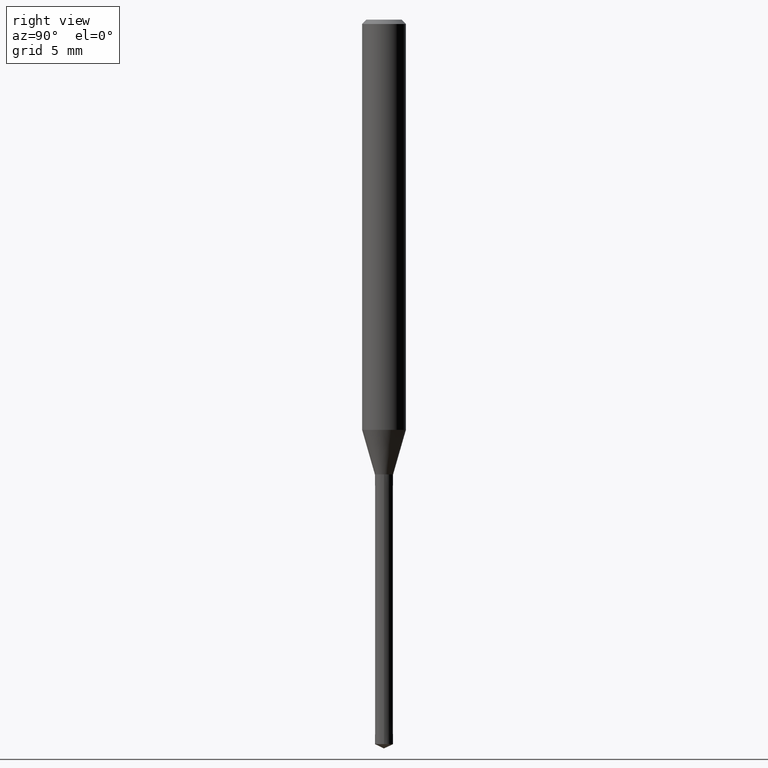
[diagram: clean part render]
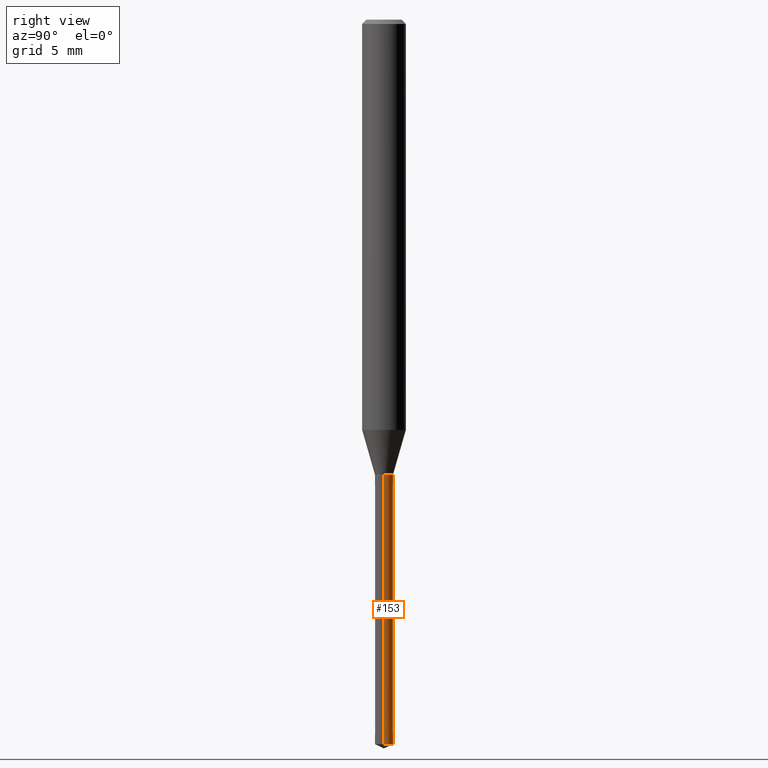
[diagram: same view with one face highlighted and labeled with its STEP entity id]
A machine part, right view. The second image highlights one B-rep face of the part: STEP entity #153.
In plain terms, the highlighted conical surface has half-angle 0.003 deg.
Its self-contained STEP definition (entity closure, byte-faithful):
#103=VERTEX_POINT('',#240);
#111=VERTEX_POINT('',#250);
#129=EDGE_CURVE('',#103,#111,#269,.T.);
#145=EDGE_CURVE('',#111,#191,#287,.T.);
#149=VERTEX_POINT('',#291);
#153=ADVANCED_FACE('',(#295),#296,.T.);
#155=EDGE_CURVE('',#191,#149,#298,.T.);
#161=EDGE_CURVE('',#103,#149,#305,.T.);
#191=VERTEX_POINT('',#340);
#240=CARTESIAN_POINT('',(-0.626,0.0,-31.2));
#250=CARTESIAN_POINT('',(-0.625,0.0,-49.70855771));
#269=LINE('',#422,#423);
#287=CIRCLE('',#446,0.625);
#291=CARTESIAN_POINT('',(0.626,7.66603577492808E-017,-31.2));
#295=FACE_OUTER_BOUND('',#455,.T.);
#296=CONICAL_SURFACE('',#456,0.6255,5.40290612966922E-005);
#298=LINE('',#459,#460);
#305=CIRCLE('',#469,0.626);
#340=CARTESIAN_POINT('',(0.625,7.65378971138986E-017,-49.70855771));
#422=CARTESIAN_POINT('',(-0.6255,-7.65991274315897E-017,-40.454278855));
#423=VECTOR('',#592,1.0);
#446=AXIS2_PLACEMENT_3D('',#614,#615,#616);
#455=EDGE_LOOP('',(#620,#621,#622,#623));
#456=AXIS2_PLACEMENT_3D('',#624,#625,#626);
#459=CARTESIAN_POINT('',(0.6255,7.65991274315897E-017,-40.454278855));
#460=VECTOR('',#627,1.0);
#469=AXIS2_PLACEMENT_3D('',#639,#640,#641);
#592=DIRECTION('',(5.40290612704058E-005,6.61643317227974E-021,-0.99999999854043));
#614=CARTESIAN_POINT('',(0.0,0.0,-49.70855771));
#615=DIRECTION('',(0.0,0.0,-1.0));
#616=DIRECTION('',(-1.0,0.0,0.0));
#620=ORIENTED_EDGE('',*,*,#129,.F.);
#621=ORIENTED_EDGE('',*,*,#161,.T.);
#622=ORIENTED_EDGE('',*,*,#155,.F.);
#623=ORIENTED_EDGE('',*,*,#145,.F.);
#624=CARTESIAN_POINT('',(0.0,0.0,-40.454278855));
#625=DIRECTION('',(-0.0,-0.0,1.0));
#626=DIRECTION('',(-1.0,0.0,0.0));
#627=DIRECTION('',(5.40290612704058E-005,6.61643317227974E-021,0.99999999854043));
#639=CARTESIAN_POINT('',(0.0,0.0,-31.2));
#640=DIRECTION('',(0.0,0.0,-1.0));
#641=DIRECTION('',(-1.0,0.0,0.0));